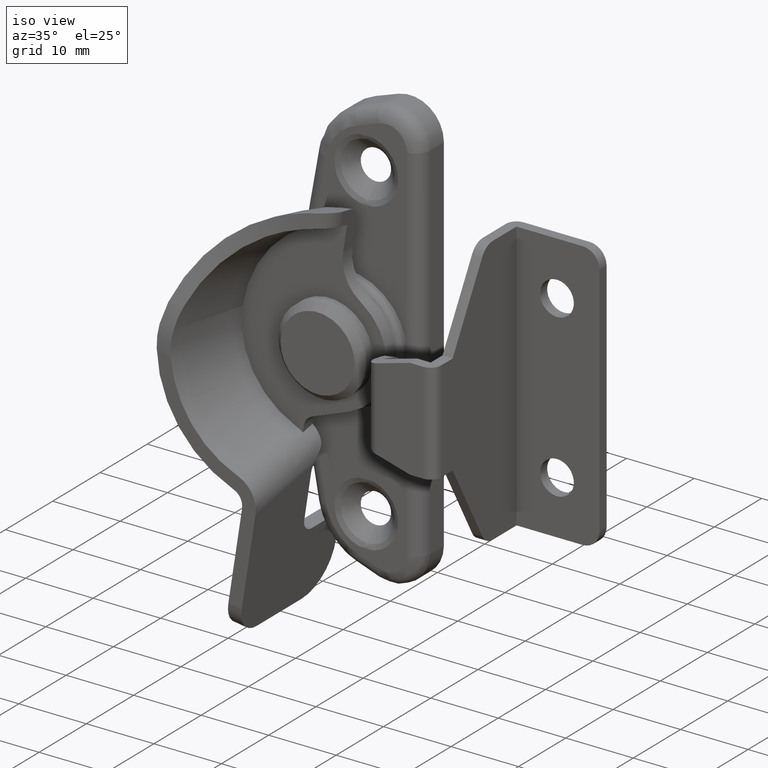
[diagram: clean part render]
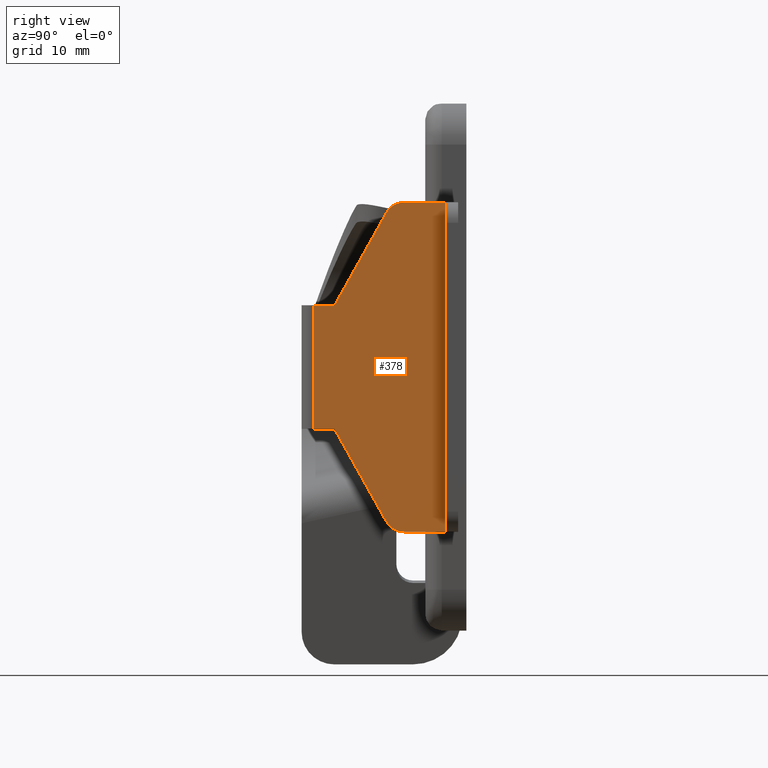
[diagram: tour spotlight — one face highlighted and labeled with its STEP entity id]
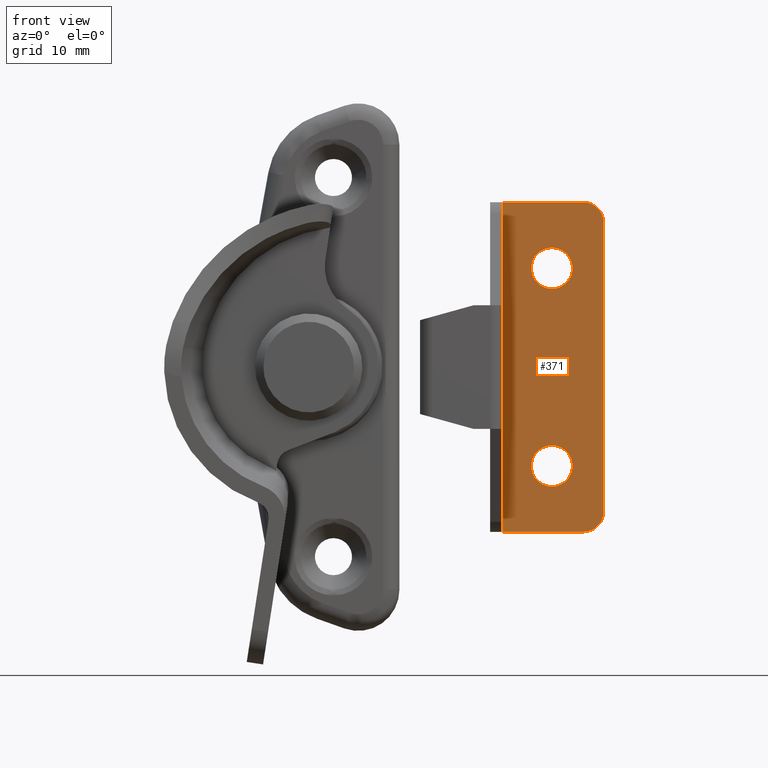
[diagram: tour spotlight — one face highlighted and labeled with its STEP entity id]
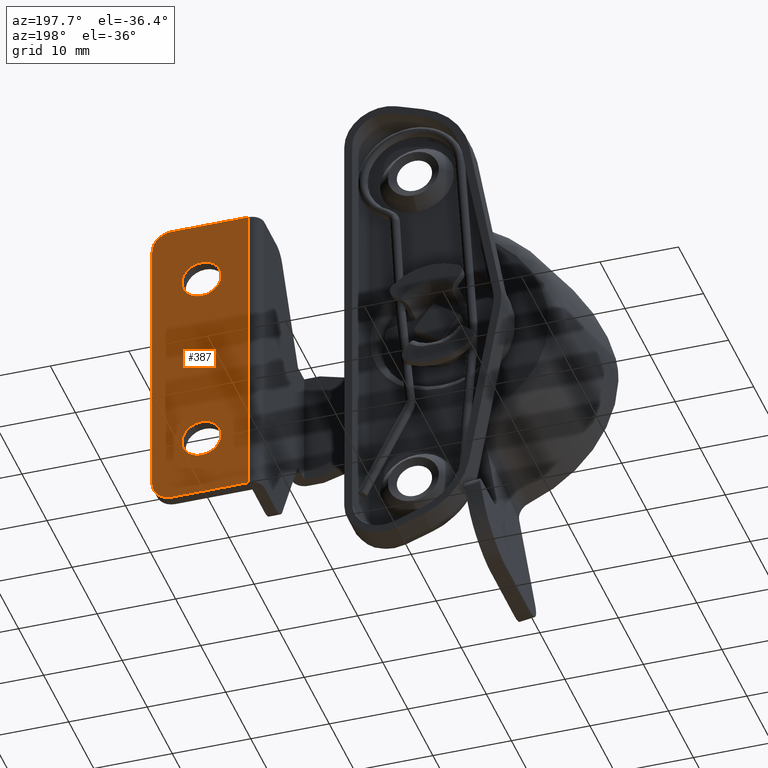
[diagram: tour spotlight — one face highlighted and labeled with its STEP entity id]
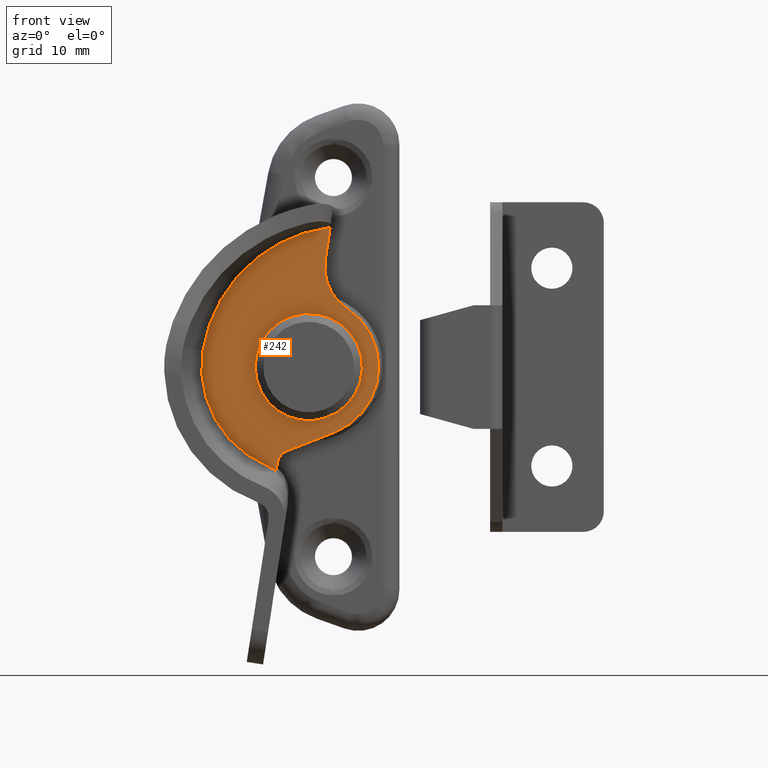
[diagram: tour spotlight — one face highlighted and labeled with its STEP entity id]
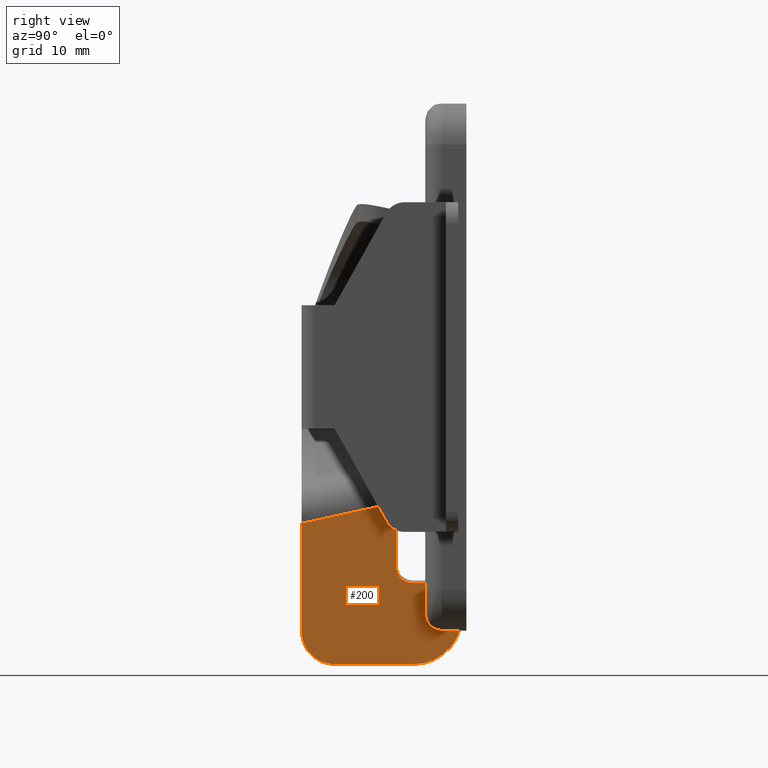
[diagram: tour spotlight — one face highlighted and labeled with its STEP entity id]
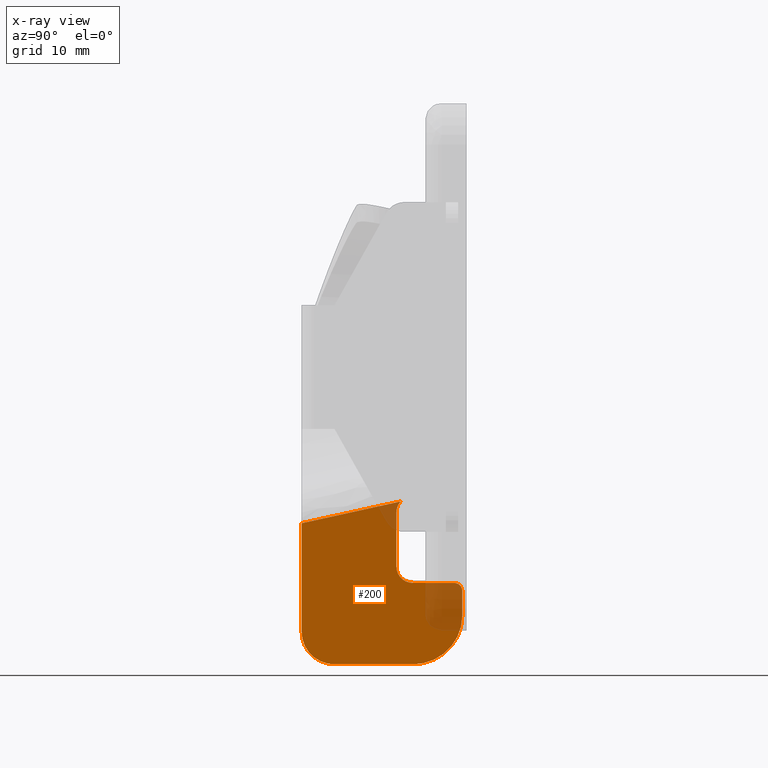
[diagram: x-ray of the same camera — body ghosted, this tour face saturated]
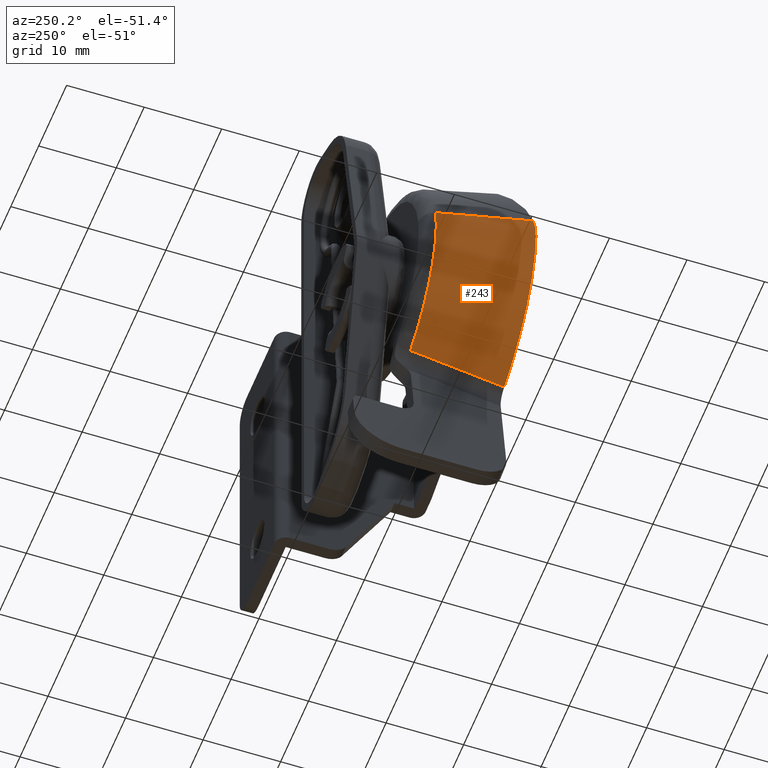
[diagram: tour spotlight — one face highlighted and labeled with its STEP entity id]
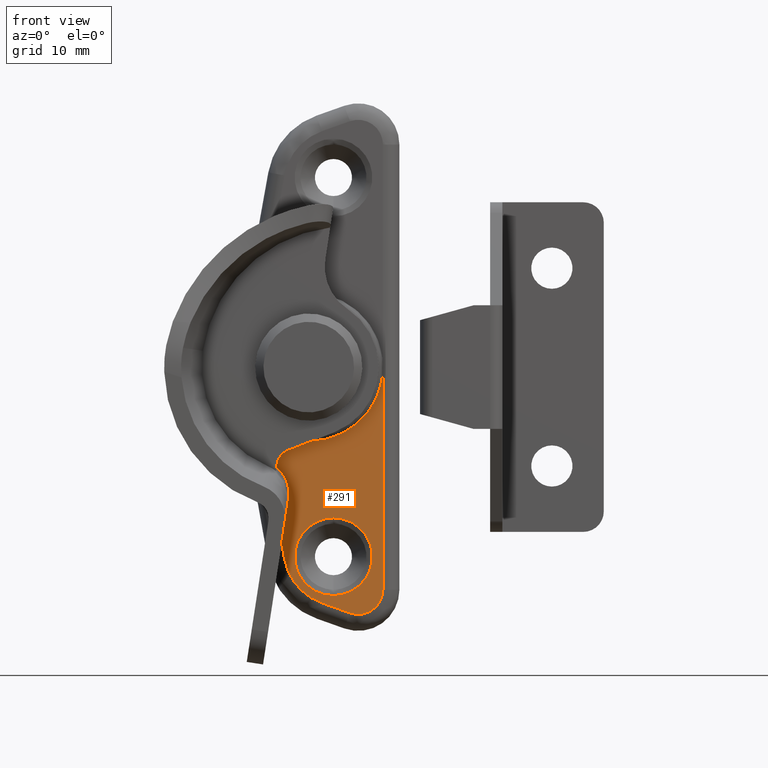
[diagram: tour spotlight — one face highlighted and labeled with its STEP entity id]
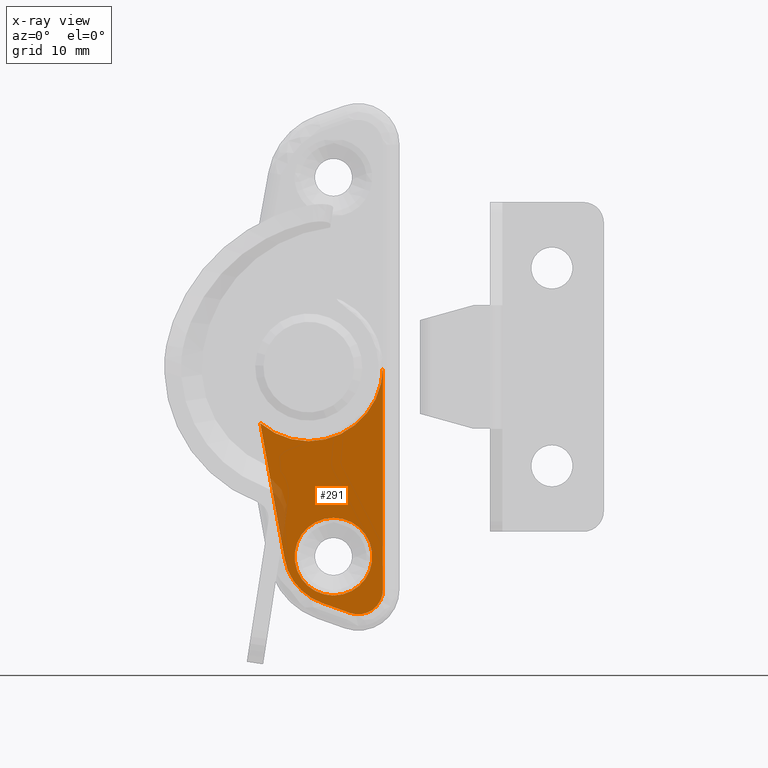
[diagram: x-ray of the same camera — body ghosted, this tour face saturated]
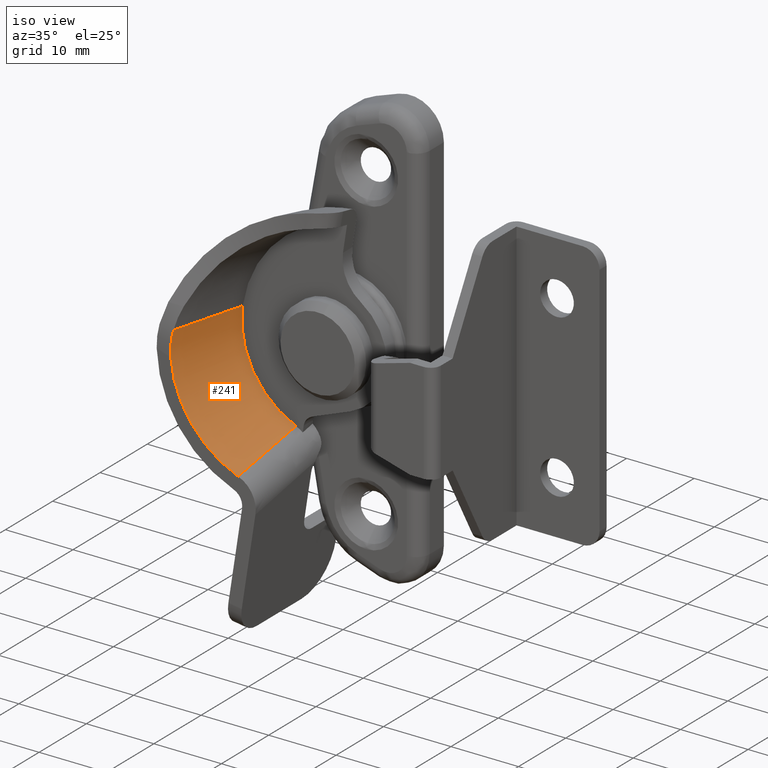
[diagram: tour spotlight — one face highlighted and labeled with its STEP entity id]
A machine part: a face-by-face anatomy tour. The part has 216 B-rep faces; the first image is the clean iso view, then the 8 largest visible faces are spotlighted one at a time (largest first), each with its STEP entity span.

Face 1 — right view, entity #378. In plain terms, the highlighted planar face has unit normal (-1, 0, 0).
Definition (entity closure, byte-faithful):
#378=ADVANCED_FACE('',(#2337),#2336,.F.);
#2336=PLANE('',#4354);
#2337=FACE_OUTER_BOUND('',#4355,.T.);
#4351=CARTESIAN_POINT('',(1.22999880000E+01,-1.91000000000E+01,2.40000000000E+01));
#4352=DIRECTION('',(1.00000000000E+00,0.00000000000E+00,0.00000000000E+00));
#4353=DIRECTION('',(0.00000000000E+00,0.00000000000E+00,-1.00000000000E+00));
#4354=AXIS2_PLACEMENT_3D('',#4351,#4352,#4353);
#4355=EDGE_LOOP('',(#5441,#5442,#5443,#5444,#5445,#5446,#5447,#5448,#5449,#5450));
#5441=ORIENTED_EDGE('',*,*,#6067,.T.);
#5442=ORIENTED_EDGE('',*,*,#6068,.T.);
#5443=ORIENTED_EDGE('',*,*,#6069,.F.);
#5444=ORIENTED_EDGE('',*,*,#6070,.T.);
#5445=ORIENTED_EDGE('',*,*,#6071,.F.);
#5446=ORIENTED_EDGE('',*,*,#6072,.T.);
#5447=ORIENTED_EDGE('',*,*,#6032,.T.);
#5448=ORIENTED_EDGE('',*,*,#6073,.T.);
#5449=ORIENTED_EDGE('',*,*,#6074,.F.);
#5450=ORIENTED_EDGE('',*,*,#6075,.T.);
#6032=EDGE_CURVE('',#9183,#9184,#9185,.T.);
#6067=EDGE_CURVE('',#9421,#9422,#9423,.T.);
#6068=EDGE_CURVE('',#9422,#9429,#9430,.T.);
#6069=EDGE_CURVE('',#9436,#9429,#9437,.T.);
#6070=EDGE_CURVE('',#9436,#9443,#9444,.T.);
#6071=EDGE_CURVE('',#9450,#9443,#9451,.T.);
#6072=EDGE_CURVE('',#9450,#9183,#9457,.T.);
#6073=EDGE_CURVE('',#9184,#9463,#9464,.T.);
#6074=EDGE_CURVE('',#9470,#9463,#9471,.T.);
#6075=EDGE_CURVE('',#9470,#9421,#9477,.T.);
#9183=VERTEX_POINT('',#11803);
#9184=VERTEX_POINT('',#11804);
#9185=LINE('',#11805,#11806);
#9421=VERTEX_POINT('',#11964);
#9422=VERTEX_POINT('',#11965);
#9423=LINE('',#11966,#11967);
#9429=VERTEX_POINT('',#11969);
#9430=LINE('',#11970,#11971);
#9436=VERTEX_POINT('',#11973);
#9437=LINE('',#11974,#11975);
#9443=VERTEX_POINT('',#11977);
#9444=LINE('',#11978,#11979);
#9450=VERTEX_POINT('',#11981);
#9451=CIRCLE('',#11985,2.50000000000E+00);
#9457=LINE('',#11986,#11987);
#9463=VERTEX_POINT('',#11989);
#9464=LINE('',#11990,#11991);
#9470=VERTEX_POINT('',#11993);
#9471=CIRCLE('',#11997,2.50000000000E+00);
#9477=LINE('',#11998,#11999);
#11803=CARTESIAN_POINT('',(1.22999880000E+01,-1.50000000000E+00,2.00000000000E+01));
#11804=CARTESIAN_POINT('',(1.22999880000E+01,-1.50000000000E+00,-2.00000000000E+01));
#11805=CARTESIAN_POINT('',(1.22999880000E+01,-1.50000000000E+00,2.00000000000E+01));
#11806=VECTOR('',#11807,4.00000000000E+01);
#11807=DIRECTION('',(0.00000000000E+00,0.00000000000E+00,-1.00000000000E+00));
#11964=CARTESIAN_POINT('',(1.22999880000E+01,-1.49999826400E+01,-7.50000000000E+00));
#11965=CARTESIAN_POINT('',(1.22999880000E+01,-1.75000000000E+01,-7.50000000000E+00));
#11966=CARTESIAN_POINT('',(1.22999880000E+01,-1.49999826400E+01,-7.50000000000E+00));
#11967=VECTOR('',#11968,2.50001736001E+00);
#11968=DIRECTION('',(0.00000000000E+00,-1.00000000000E+00,0.00000000000E+00));
#11969=CARTESIAN_POINT('',(1.22999880000E+01,-1.75000000000E+01,7.50000000000E+00));
#11970=CARTESIAN_POINT('',(1.22999880000E+01,-1.75000000000E+01,-7.50000000000E+00));
#11971=VECTOR('',#11972,1.50000000000E+01);
#11972=DIRECTION('',(0.00000000000E+00,0.00000000000E+00,1.00000000000E+00));
#11973=CARTESIAN_POINT('',(1.22999880000E+01,-1.50000352400E+01,7.50000000000E+00));
#11974=CARTESIAN_POINT('',(1.22999880000E+01,-1.50000352400E+01,7.50000000000E+00));
#11975=VECTOR('',#11976,2.49996475998E+00);
#11976=DIRECTION('',(0.00000000000E+00,-1.00000000000E+00,0.00000000000E+00));
#11977=CARTESIAN_POINT('',(1.22999880000E+01,-8.71599585956E+00,1.87215076931E+01));
#11978=CARTESIAN_POINT('',(1.22999880000E+01,-1.50000352400E+01,7.50000000000E+00));
#11979=VECTOR('',#11980,1.28612357821E+01);
#11980=DIRECTION('',(0.00000000000E+00,4.88603077257E-01,8.72506179287E-01));
#11981=CARTESIAN_POINT('',(1.22999880000E+01,-6.53473041134E+00,2.00000000000E+01));
#11982=CARTESIAN_POINT('',(1.22999880000E+01,-6.53473041134E+00,1.75000000000E+01));
#11983=DIRECTION('',(1.00000000000E+00,0.00000000000E+00,0.00000000000E+00));
#11984=DIRECTION('',(-0.00000000000E+00,-0.00000000000E+00,1.00000000000E+00));
#11985=AXIS2_PLACEMENT_3D('',#11982,#11983,#11984);
#11986=CARTESIAN_POINT('',(1.22999880000E+01,-6.53473041134E+00,2.00000000000E+01));
#11987=VECTOR('',#11988,5.03473041134E+00);
#11988=DIRECTION('',(0.00000000000E+00,1.00000000000E+00,0.00000000000E+00));
#11989=CARTESIAN_POINT('',(1.22999880000E+01,-6.53466959847E+00,-2.00000000000E+01));
#11990=CARTESIAN_POINT('',(1.22999880000E+01,-1.50000000000E+00,-2.00000000000E+01));
#11991=VECTOR('',#11992,5.03466959847E+00);
#11992=DIRECTION('',(0.00000000000E+00,-1.00000000000E+00,0.00000000000E+00));
#11993=CARTESIAN_POINT('',(1.22999880000E+01,-8.71593436612E+00,-1.87215089085E+01));
#11994=CARTESIAN_POINT('',(1.22999880000E+01,-6.53466959847E+00,-1.75000000000E+01));
#11995=DIRECTION('',(1.00000000000E+00,0.00000000000E+00,0.00000000000E+00));
#11996=DIRECTION('',(-0.00000000000E+00,-0.00000000000E+00,1.00000000000E+00));
#11997=AXIS2_PLACEMENT_3D('',#11994,#11995,#11996);
#11998=CARTESIAN_POINT('',(1.22999880000E+01,-8.71593436612E+00,-1.87215089085E+01));
#11999=VECTOR('',#12000,1.28612411878E+01);
#12000=DIRECTION('',(0.00000000000E+00,-4.88603563382E-01,8.72505907058E-01));

Face 2 — front view, entity #371. In plain terms, the highlighted planar face has unit normal (0, -1, 0).
Definition (entity closure, byte-faithful):
#371=ADVANCED_FACE('',(#2265,#2266,#2267),#2264,.T.);
#2264=PLANE('',#4317);
#2265=FACE_OUTER_BOUND('',#4318,.T.);
#2266=FACE_BOUND('',#4319,.T.);
#2267=FACE_BOUND('',#4320,.T.);
#4314=CARTESIAN_POINT('',(-1.22999880000E+00,-1.50000000000E+00,2.40000000000E+01));
#4315=DIRECTION('',(0.00000000000E+00,-1.00000000000E+00,0.00000000000E+00));
#4316=DIRECTION('',(0.00000000000E+00,0.00000000000E+00,-1.00000000000E+00));
#4317=AXIS2_PLACEMENT_3D('',#4314,#4315,#4316);
#4318=EDGE_LOOP('',(#5399,#5400,#5401,#5402,#5403,#5404));
#4319=EDGE_LOOP('',(#5405,#5406));
#4320=EDGE_LOOP('',(#5407,#5408));
#5399=ORIENTED_EDGE('',*,*,#6032,.F.);
#5400=ORIENTED_EDGE('',*,*,#6033,.F.);
#5401=ORIENTED_EDGE('',*,*,#6034,.T.);
#5402=ORIENTED_EDGE('',*,*,#6035,.F.);
#5403=ORIENTED_EDGE('',*,*,#6036,.T.);
#5404=ORIENTED_EDGE('',*,*,#6037,.F.);
#5405=ORIENTED_EDGE('',*,*,#6038,.F.);
#5406=ORIENTED_EDGE('',*,*,#6039,.F.);
#5407=ORIENTED_EDGE('',*,*,#6040,.F.);
#5408=ORIENTED_EDGE('',*,*,#6041,.F.);
#6032=EDGE_CURVE('',#9183,#9184,#9185,.T.);
#6033=EDGE_CURVE('',#9191,#9183,#9192,.T.);
#6034=EDGE_CURVE('',#9191,#9198,#9199,.T.);
#6035=EDGE_CURVE('',#9205,#9198,#9206,.T.);
#6036=EDGE_CURVE('',#9205,#9212,#9213,.T.);
#6037=EDGE_CURVE('',#9184,#9212,#9219,.T.);
#6038=EDGE_CURVE('',#9225,#9226,#9227,.T.);
#6039=EDGE_CURVE('',#9226,#9225,#9233,.T.);
#6040=EDGE_CURVE('',#9239,#9240,#9241,.T.);
#6041=EDGE_CURVE('',#9240,#9239,#9247,.T.);
#9183=VERTEX_POINT('',#11803);
#9184=VERTEX_POINT('',#11804);
#9185=LINE('',#11805,#11806);
#9191=VERTEX_POINT('',#11808);
#9192=LINE('',#11809,#11810);
#9198=VERTEX_POINT('',#11812);
#9199=CIRCLE('',#11816,2.50000000000E+00);
#9205=VERTEX_POINT('',#11817);
#9206=LINE('',#11818,#11819);
#9212=VERTEX_POINT('',#11821);
#9213=CIRCLE('',#11825,2.50000000000E+00);
#9219=LINE('',#11826,#11827);
#9225=VERTEX_POINT('',#11829);
#9226=VERTEX_POINT('',#11830);
#9227=CIRCLE('',#11834,2.50000000000E+00);
#9233=CIRCLE('',#11838,2.50000000000E+00);
#9239=VERTEX_POINT('',#11839);
#9240=VERTEX_POINT('',#11840);
#9241=CIRCLE('',#11844,2.50000000000E+00);
#9247=CIRCLE('',#11848,2.50000000000E+00);
#11803=CARTESIAN_POINT('',(1.22999880000E+01,-1.50000000000E+00,2.00000000000E+01));
#11804=CARTESIAN_POINT('',(1.22999880000E+01,-1.50000000000E+00,-2.00000000000E+01));
#11805=CARTESIAN_POINT('',(1.22999880000E+01,-1.50000000000E+00,2.00000000000E+01));
#11806=VECTOR('',#11807,4.00000000000E+01);
#11807=DIRECTION('',(0.00000000000E+00,0.00000000000E+00,-1.00000000000E+00));
#11808=CARTESIAN_POINT('',(2.50000000000E+00,-1.50000000000E+00,2.00000000000E+01));
#11809=CARTESIAN_POINT('',(2.50000000000E+00,-1.50000000000E+00,2.00000000000E+01));
#11810=VECTOR('',#11811,9.79998800000E+00);
#11811=DIRECTION('',(1.00000000000E+00,0.00000000000E+00,0.00000000000E+00));
#11812=CARTESIAN_POINT('',(0.00000000000E+00,-1.50000000000E+00,1.75000000000E+01));
#11813=CARTESIAN_POINT('',(2.50000000000E+00,-1.50000000000E+00,1.75000000000E+01));
#11814=DIRECTION('',(0.00000000000E+00,-1.00000000000E+00,0.00000000000E+00));
#11815=DIRECTION('',(-0.00000000000E+00,-0.00000000000E+00,1.00000000000E+00));
#11816=AXIS2_PLACEMENT_3D('',#11813,#11814,#11815);
#11817=CARTESIAN_POINT('',(0.00000000000E+00,-1.50000000000E+00,-1.75000000000E+01));
#11818=CARTESIAN_POINT('',(0.00000000000E+00,-1.50000000000E+00,-1.75000000000E+01));
#11819=VECTOR('',#11820,3.50000000000E+01);
#11820=DIRECTION('',(0.00000000000E+00,0.00000000000E+00,1.00000000000E+00));
#11821=CARTESIAN_POINT('',(2.50000000000E+00,-1.50000000000E+00,-2.00000000000E+01));
#11822=CARTESIAN_POINT('',(2.50000000000E+00,-1.50000000000E+00,-1.75000000000E+01));
#11823=DIRECTION('',(0.00000000000E+00,-1.00000000000E+00,0.00000000000E+00));
#11824=DIRECTION('',(-0.00000000000E+00,-0.00000000000E+00,1.00000000000E+00));
#11825=AXIS2_PLACEMENT_3D('',#11822,#11823,#11824);
#11826=CARTESIAN_POINT('',(1.22999880000E+01,-1.50000000000E+00,-2.00000000000E+01));
#11827=VECTOR('',#11828,9.79998800000E+00);
#11828=DIRECTION('',(-1.00000000000E+00,0.00000000000E+00,0.00000000000E+00));
#11829=CARTESIAN_POINT('',(6.29998800000E+00,-1.50000000000E+00,1.45000000000E+01));
#11830=CARTESIAN_POINT('',(6.29998800000E+00,-1.50000000000E+00,9.50000000000E+00));
#11831=CARTESIAN_POINT('',(6.29998800000E+00,-1.50000000000E+00,1.20000000000E+01));
#11832=DIRECTION('',(0.00000000000E+00,-1.00000000000E+00,-0.00000000000E+00));
#11833=DIRECTION('',(-1.22460635382E-16,0.00000000000E+00,-1.00000000000E+00));
#11834=AXIS2_PLACEMENT_3D('',#11831,#11832,#11833);
#11835=CARTESIAN_POINT('',(6.29998800000E+00,-1.50000000000E+00,1.20000000000E+01));
#11836=DIRECTION('',(0.00000000000E+00,-1.00000000000E+00,-0.00000000000E+00));
#11837=DIRECTION('',(-1.22460635382E-16,0.00000000000E+00,-1.00000000000E+00));
#11838=AXIS2_PLACEMENT_3D('',#11835,#11836,#11837);
#11839=CARTESIAN_POINT('',(6.29998800000E+00,-1.50000000000E+00,-9.50000000000E+00));
#11840=CARTESIAN_POINT('',(6.29998800000E+00,-1.50000000000E+00,-1.45000000000E+01));
#11841=CARTESIAN_POINT('',(6.29998800000E+00,-1.50000000000E+00,-1.20000000000E+01));
#11842=DIRECTION('',(0.00000000000E+00,-1.00000000000E+00,-0.00000000000E+00));
#11843=DIRECTION('',(-1.22460635382E-16,0.00000000000E+00,-1.00000000000E+00));
#11844=AXIS2_PLACEMENT_3D('',#11841,#11842,#11843);
#11845=CARTESIAN_POINT('',(6.29998800000E+00,-1.50000000000E+00,-1.20000000000E+01));
#11846=DIRECTION('',(0.00000000000E+00,-1.00000000000E+00,-0.00000000000E+00));
#11847=DIRECTION('',(-1.22460635382E-16,0.00000000000E+00,-1.00000000000E+00));
#11848=AXIS2_PLACEMENT_3D('',#11845,#11846,#11847);

Face 3 — auxiliary view, entity #387. In plain terms, the highlighted planar face has unit normal (0, -1, 0).
Definition (entity closure, byte-faithful):
#387=ADVANCED_FACE('',(#2427,#2428,#2429),#2426,.F.);
#2426=PLANE('',#4399);
#2427=FACE_OUTER_BOUND('',#4400,.T.);
#2428=FACE_BOUND('',#4401,.T.);
#2429=FACE_BOUND('',#4402,.T.);
#4396=CARTESIAN_POINT('',(-1.22999880000E+00,0.00000000000E+00,2.40000000000E+01));
#4397=DIRECTION('',(0.00000000000E+00,-1.00000000000E+00,0.00000000000E+00));
#4398=DIRECTION('',(0.00000000000E+00,0.00000000000E+00,-1.00000000000E+00));
#4399=AXIS2_PLACEMENT_3D('',#4396,#4397,#4398);
#4400=EDGE_LOOP('',(#5490,#5491,#5492,#5493,#5494,#5495));
#4401=EDGE_LOOP('',(#5496,#5497));
#4402=EDGE_LOOP('',(#5498,#5499));
#5490=ORIENTED_EDGE('',*,*,#6093,.T.);
#5491=ORIENTED_EDGE('',*,*,#6045,.T.);
#5492=ORIENTED_EDGE('',*,*,#6091,.F.);
#5493=ORIENTED_EDGE('',*,*,#6081,.F.);
#5494=ORIENTED_EDGE('',*,*,#6084,.T.);
#5495=ORIENTED_EDGE('',*,*,#6086,.F.);
#5496=ORIENTED_EDGE('',*,*,#6094,.T.);
#5497=ORIENTED_EDGE('',*,*,#6095,.T.);
#5498=ORIENTED_EDGE('',*,*,#6096,.T.);
#5499=ORIENTED_EDGE('',*,*,#6097,.T.);
#6045=EDGE_CURVE('',#9254,#9268,#9275,.T.);
#6081=EDGE_CURVE('',#9508,#9515,#9516,.T.);
#6084=EDGE_CURVE('',#9508,#9528,#9535,.T.);
#6086=EDGE_CURVE('',#9541,#9528,#9548,.T.);
#6091=EDGE_CURVE('',#9515,#9268,#9580,.T.);
#6093=EDGE_CURVE('',#9541,#9254,#9592,.T.);
#6094=EDGE_CURVE('',#9598,#9599,#9600,.T.);
#6095=EDGE_CURVE('',#9599,#9598,#9606,.T.);
#6096=EDGE_CURVE('',#9612,#9613,#9614,.T.);
#6097=EDGE_CURVE('',#9613,#9612,#9620,.T.);
#9254=VERTEX_POINT('',#11850);
#9268=VERTEX_POINT('',#11859);
#9275=LINE('',#11864,#11865);
#9508=VERTEX_POINT('',#12015);
#9515=VERTEX_POINT('',#12019);
#9516=CIRCLE('',#12023,2.50000000000E+00);
#9528=VERTEX_POINT('',#12027);
#9535=LINE('',#12031,#12032);
#9541=VERTEX_POINT('',#12034);
#9548=CIRCLE('',#12041,2.50000000000E+00);
#9580=LINE('',#12057,#12058);
#9592=LINE('',#12063,#12064);
#9598=VERTEX_POINT('',#12066);
#9599=VERTEX_POINT('',#12067);
#9600=CIRCLE('',#12071,2.50000000000E+00);
#9606=CIRCLE('',#12075,2.50000000000E+00);
#9612=VERTEX_POINT('',#12076);
#9613=VERTEX_POINT('',#12077);
#9614=CIRCLE('',#12081,2.50000000000E+00);
#9620=CIRCLE('',#12085,2.50000000000E+00);
#11850=CARTESIAN_POINT('',(1.22999880000E+01,0.00000000000E+00,2.00000000000E+01));
#11859=CARTESIAN_POINT('',(1.22999880000E+01,0.00000000000E+00,-2.00000000000E+01));
#11864=CARTESIAN_POINT('',(1.22999880000E+01,0.00000000000E+00,2.00000000000E+01));
#11865=VECTOR('',#11866,4.00000000000E+01);
#11866=DIRECTION('',(0.00000000000E+00,0.00000000000E+00,-1.00000000000E+00));
#12015=CARTESIAN_POINT('',(0.00000000000E+00,0.00000000000E+00,-1.75000000000E+01));
#12019=CARTESIAN_POINT('',(2.50000000000E+00,0.00000000000E+00,-2.00000000000E+01));
#12020=CARTESIAN_POINT('',(2.50000000000E+00,0.00000000000E+00,-1.75000000000E+01));
#12021=DIRECTION('',(0.00000000000E+00,-1.00000000000E+00,0.00000000000E+00));
#12022=DIRECTION('',(-0.00000000000E+00,-0.00000000000E+00,1.00000000000E+00));
#12023=AXIS2_PLACEMENT_3D('',#12020,#12021,#12022);
#12027=CARTESIAN_POINT('',(0.00000000000E+00,0.00000000000E+00,1.75000000000E+01));
#12031=CARTESIAN_POINT('',(0.00000000000E+00,0.00000000000E+00,-1.75000000000E+01));
#12032=VECTOR('',#12033,3.50000000000E+01);
#12033=DIRECTION('',(0.00000000000E+00,0.00000000000E+00,1.00000000000E+00));
#12034=CARTESIAN_POINT('',(2.50000000000E+00,0.00000000000E+00,2.00000000000E+01));
#12038=CARTESIAN_POINT('',(2.50000000000E+00,0.00000000000E+00,1.75000000000E+01));
#12039=DIRECTION('',(0.00000000000E+00,-1.00000000000E+00,0.00000000000E+00));
#12040=DIRECTION('',(-0.00000000000E+00,-0.00000000000E+00,1.00000000000E+00));
#12041=AXIS2_PLACEMENT_3D('',#12038,#12039,#12040);
#12057=CARTESIAN_POINT('',(2.50000000000E+00,0.00000000000E+00,-2.00000000000E+01));
#12058=VECTOR('',#12059,9.79998800000E+00);
#12059=DIRECTION('',(1.00000000000E+00,0.00000000000E+00,0.00000000000E+00));
#12063=CARTESIAN_POINT('',(2.50000000000E+00,0.00000000000E+00,2.00000000000E+01));
#12064=VECTOR('',#12065,9.79998800000E+00);
#12065=DIRECTION('',(1.00000000000E+00,0.00000000000E+00,0.00000000000E+00));
#12066=CARTESIAN_POINT('',(6.29998800000E+00,0.00000000000E+00,9.50000000000E+00));
#12067=CARTESIAN_POINT('',(6.29998800000E+00,0.00000000000E+00,1.45000000000E+01));
#12068=CARTESIAN_POINT('',(6.29998800000E+00,0.00000000000E+00,1.20000000000E+01));
#12069=DIRECTION('',(0.00000000000E+00,-1.00000000000E+00,-0.00000000000E+00));
#12070=DIRECTION('',(-1.22460635382E-16,0.00000000000E+00,-1.00000000000E+00));
#12071=AXIS2_PLACEMENT_3D('',#12068,#12069,#12070);
#12072=CARTESIAN_POINT('',(6.29998800000E+00,0.00000000000E+00,1.20000000000E+01));
#12073=DIRECTION('',(0.00000000000E+00,-1.00000000000E+00,-0.00000000000E+00));
#12074=DIRECTION('',(-1.22460635382E-16,0.00000000000E+00,-1.00000000000E+00));
#12075=AXIS2_PLACEMENT_3D('',#12072,#12073,#12074);
#12076=CARTESIAN_POINT('',(6.29998800000E+00,0.00000000000E+00,-1.45000000000E+01));
#12077=CARTESIAN_POINT('',(6.29998800000E+00,0.00000000000E+00,-9.50000000000E+00));
#12078=CARTESIAN_POINT('',(6.29998800000E+00,0.00000000000E+00,-1.20000000000E+01));
#12079=DIRECTION('',(0.00000000000E+00,-1.00000000000E+00,-0.00000000000E+00));
#12080=DIRECTION('',(-1.22460635382E-16,0.00000000000E+00,-1.00000000000E+00));
#12081=AXIS2_PLACEMENT_3D('',#12078,#12079,#12080);
#12082=CARTESIAN_POINT('',(6.29998800000E+00,0.00000000000E+00,-1.20000000000E+01));
#12083=DIRECTION('',(0.00000000000E+00,-1.00000000000E+00,-0.00000000000E+00));
#12084=DIRECTION('',(-1.22460635382E-16,0.00000000000E+00,-1.00000000000E+00));
#12085=AXIS2_PLACEMENT_3D('',#12082,#12083,#12084);

Face 4 — front view, entity #242. In plain terms, the highlighted planar face has unit normal (0, -1, 0).
Definition (entity closure, byte-faithful):
#242=ADVANCED_FACE('',(#966,#967),#965,.T.);
#965=PLANE('',#3005);
#966=FACE_OUTER_BOUND('',#3006,.T.);
#967=FACE_BOUND('',#3007,.T.);
#3002=CARTESIAN_POINT('',(-3.39351849721E+01,0.00000000000E+00,2.22327390075E+01));
#3003=DIRECTION('',(0.00000000000E+00,-1.00000000000E+00,-0.00000000000E+00));
#3004=DIRECTION('',(-1.51914655832E-01,0.00000000000E+00,-9.88393614580E-01));
#3005=AXIS2_PLACEMENT_3D('',#3002,#3003,#3004);
#3006=EDGE_LOOP('',(#4777,#4778,#4779,#4780,#4781,#4782,#4783,#4784,#4785));
#3007=EDGE_LOOP('',(#4786,#4787));
#4777=ORIENTED_EDGE('',*,*,#5659,.T.);
#4778=ORIENTED_EDGE('',*,*,#5761,.F.);
#4779=ORIENTED_EDGE('',*,*,#5755,.T.);
#4780=ORIENTED_EDGE('',*,*,#5762,.F.);
#4781=ORIENTED_EDGE('',*,*,#5763,.F.);
#4782=ORIENTED_EDGE('',*,*,#5621,.F.);
#4783=ORIENTED_EDGE('',*,*,#5643,.F.);
#4784=ORIENTED_EDGE('',*,*,#5760,.F.);
#4785=ORIENTED_EDGE('',*,*,#5601,.F.);
#4786=ORIENTED_EDGE('',*,*,#5764,.T.);
#4787=ORIENTED_EDGE('',*,*,#5765,.T.);
#5601=EDGE_CURVE('',#6326,#6333,#6334,.T.);
#5621=EDGE_CURVE('',#6462,#6469,#6470,.T.);
#5643=EDGE_CURVE('',#6607,#6462,#6614,.T.);
#5659=EDGE_CURVE('',#6326,#6723,#6724,.T.);
#5755=EDGE_CURVE('',#7369,#7362,#7370,.T.);
#5760=EDGE_CURVE('',#6333,#6607,#7400,.T.);
#5761=EDGE_CURVE('',#7369,#6723,#7406,.T.);
#5762=EDGE_CURVE('',#7412,#7362,#7413,.T.);
#5763=EDGE_CURVE('',#6469,#7412,#7419,.T.);
#5764=EDGE_CURVE('',#7425,#7426,#7427,.T.);
#5765=EDGE_CURVE('',#7426,#7425,#7433,.T.);
#6326=VERTEX_POINT('',#9952);
#6333=VERTEX_POINT('',#9957);
#6334=(BOUNDED_CURVE() B_SPLINE_CURVE(3,(#9958,#9959,#9960,#9961),.UNSPECIFIED.,.F.,.F.) B_SPLINE_CURVE_WITH_KNOTS((4,4),(0.00000000000E+00,1.16116631251E-03),.UNSPECIFIED.) CURVE() GEOMETRIC_REPRESENTATION_ITEM() RATIONAL_B_SPLINE_CURVE((1.00000000000E+00,1.00000000000E+00,1.00000000000E+00,1.00000000000E+00)) REPRESENTATION_ITEM('') );
#6462=VERTEX_POINT('',#10071);
#6469=VERTEX_POINT('',#10076);
#6470=LINE('',#10077,#10078);
#6607=VERTEX_POINT('',#10161);
#6614=CIRCLE('',#10168,1.78000000000E+01);
#6723=VERTEX_POINT('',#10252);
#6724=LINE('',#10253,#10254);
#7362=VERTEX_POINT('',#10646);
#7369=VERTEX_POINT('',#10650);
#7370=LINE('',#10651,#10652);
#7400=CIRCLE('',#10669,1.30000000000E+01);
#7406=CIRCLE('',#10673,2.00000000000E+00);
#7412=VERTEX_POINT('',#10674);
#7413=CIRCLE('',#10678,8.50000000000E+00);
#7419=CIRCLE('',#10682,6.00000000000E+00);
#7425=VERTEX_POINT('',#10683);
#7426=VERTEX_POINT('',#10684);
#7427=CIRCLE('',#10688,6.50000000000E+00);
#7433=CIRCLE('',#10692,6.50000000000E+00);
#9952=CARTESIAN_POINT('',(-2.59621804700E+01,0.00000000000E+00,-1.26136167606E+01));
#9957=CARTESIAN_POINT('',(-2.69584801494E+01,0.00000000000E+00,-1.20172157594E+01));
#9958=CARTESIAN_POINT('',(-2.59621804700E+01,0.00000000000E+00,-1.26136167606E+01));
#9959=CARTESIAN_POINT('',(-2.62647751320E+01,0.00000000000E+00,-1.23655273542E+01));
#9960=CARTESIAN_POINT('',(-2.65967273328E+01,0.00000000000E+00,-1.21664802975E+01));
#9961=CARTESIAN_POINT('',(-2.69584801494E+01,0.00000000000E+00,-1.20172157594E+01));
#10071=CARTESIAN_POINT('',(-1.93960923963E+01,4.25798365246E-16,1.69416547359E+01));
#10076=CARTESIAN_POINT('',(-1.99946690004E+01,0.00000000000E+00,1.30471700986E+01));
#10077=CARTESIAN_POINT('',(-1.93960923963E+01,0.00000000000E+00,1.69416547359E+01));
#10078=VECTOR('',#10079,3.94021630641E+00);
#10079=DIRECTION('',(-1.51914655832E-01,0.00000000000E+00,-9.88393614580E-01));
#10161=CARTESIAN_POINT('',(-3.48491169895E+01,1.38777878078E-14,1.97489052589E+00));
#10165=CARTESIAN_POINT('',(-1.72557106500E+01,0.00000000000E+00,-7.29190347995E-01));
#10166=DIRECTION('',(0.00000000000E+00,1.00000000000E+00,0.00000000000E+00));
#10167=DIRECTION('',(1.51914655832E-01,-0.00000000000E+00,9.88393614580E-01));
#10168=AXIS2_PLACEMENT_3D('',#10165,#10166,#10167);
#10252=CARTESIAN_POINT('',(-2.58186552205E+01,0.00000000000E+00,-1.16798066593E+01));
#10253=CARTESIAN_POINT('',(-2.59621804700E+01,0.00000000000E+00,-1.26136167606E+01));
#10254=VECTOR('',#10255,9.44775530161E-01);
#10255=DIRECTION('',(1.51914655832E-01,0.00000000000E+00,9.88393614580E-01));
#10646=CARTESIAN_POINT('',(-1.89176037229E+01,0.00000000000E+00,-7.92141611019E+00));
#10650=CARTESIAN_POINT('',(-2.45671377036E+01,0.00000000000E+00,-1.01197733568E+01));
#10651=CARTESIAN_POINT('',(-2.45671377036E+01,0.00000000000E+00,-1.01197733568E+01));
#10652=VECTOR('',#10653,6.06217855090E+00);
#10653=DIRECTION('',(9.31931307081E-01,0.00000000000E+00,3.62634856132E-01));
#10666=CARTESIAN_POINT('',(-2.20000000000E+01,0.00000000000E+00,0.00000000000E+00));
#10667=DIRECTION('',(0.00000000000E+00,1.00000000000E+00,0.00000000000E+00));
#10668=DIRECTION('',(1.51914655832E-01,-0.00000000000E+00,9.88393614580E-01));
#10669=AXIS2_PLACEMENT_3D('',#10666,#10667,#10668);
#10670=CARTESIAN_POINT('',(-2.38418679913E+01,0.00000000000E+00,-1.19836359710E+01));
#10671=DIRECTION('',(0.00000000000E+00,-1.00000000000E+00,-0.00000000000E+00));
#10672=DIRECTION('',(1.51914655832E-01,-0.00000000000E+00,9.88393614580E-01));
#10673=AXIS2_PLACEMENT_3D('',#10670,#10671,#10672);
#10674=CARTESIAN_POINT('',(-1.73480422179E+01,0.00000000000E+00,7.11402057867E+00));
#10675=CARTESIAN_POINT('',(-2.20000000000E+01,0.00000000000E+00,0.00000000000E+00));
#10676=DIRECTION('',(0.00000000000E+00,1.00000000000E+00,0.00000000000E+00));
#10677=DIRECTION('',(1.51914655832E-01,-0.00000000000E+00,9.88393614580E-01));
#10678=AXIS2_PLACEMENT_3D('',#10675,#10676,#10677);
#10679=CARTESIAN_POINT('',(-1.40643073129E+01,0.00000000000E+00,1.21356821636E+01));
#10680=DIRECTION('',(0.00000000000E+00,-1.00000000000E+00,-0.00000000000E+00));
#10681=DIRECTION('',(1.51914655832E-01,-0.00000000000E+00,9.88393614580E-01));
#10682=AXIS2_PLACEMENT_3D('',#10679,#10680,#10681);
#10683=CARTESIAN_POINT('',(-2.10125547372E+01,-5.85469173142E-14,6.42455849471E+00));
#10684=CARTESIAN_POINT('',(-2.29874452630E+01,-5.85469173142E-14,-6.42455849483E+00));
#10685=CARTESIAN_POINT('',(-2.20000000001E+01,-5.85469173142E-14,-5.79137481327E-11));
#10686=DIRECTION('',(0.00000000000E+00,1.00000000000E+00,-0.00000000000E+00));
#10687=DIRECTION('',(1.51914655832E-01,0.00000000000E+00,9.88393614580E-01));
#10688=AXIS2_PLACEMENT_3D('',#10685,#10686,#10687);
#10689=CARTESIAN_POINT('',(-2.20000000001E+01,-5.85469173142E-14,-5.79137481327E-11));
#10690=DIRECTION('',(0.00000000000E+00,1.00000000000E+00,-0.00000000000E+00));
#10691=DIRECTION('',(1.51914655832E-01,0.00000000000E+00,9.88393614580E-01));
#10692=AXIS2_PLACEMENT_3D('',#10689,#10690,#10691);

Face 5 — right view, entity #200. An x-ray twin of the same camera follows (body ghosted, this face saturated) — the face is partly hidden behind the body. In plain terms, the highlighted planar face has unit normal (-0.9884, 0, 0.1519).
Definition (entity closure, byte-faithful):
#200=ADVANCED_FACE('',(#543),#542,.F.);
#542=PLANE('',#2758);
#543=FACE_OUTER_BOUND('',#2759,.T.);
#2755=CARTESIAN_POINT('',(-2.42032217757E+01,9.95000000000E+00,-1.43346955086E+01));
#2756=DIRECTION('',(-9.88393614580E-01,0.00000000000E+00,1.51914655832E-01));
#2757=DIRECTION('',(-1.51914655832E-01,0.00000000000E+00,-9.88393614580E-01));
#2758=AXIS2_PLACEMENT_3D('',#2755,#2756,#2757);
#2759=EDGE_LOOP('',(#4556,#4557,#4558,#4559,#4560,#4561,#4562,#4563,#4564,#4565,#4566,#4567));
#4556=ORIENTED_EDGE('',*,*,#5628,.F.);
#4557=ORIENTED_EDGE('',*,*,#5612,.F.);
#4558=ORIENTED_EDGE('',*,*,#5629,.T.);
#4559=ORIENTED_EDGE('',*,*,#5616,.F.);
#4560=ORIENTED_EDGE('',*,*,#5588,.F.);
#4561=ORIENTED_EDGE('',*,*,#5604,.F.);
#4562=ORIENTED_EDGE('',*,*,#5625,.F.);
#4563=ORIENTED_EDGE('',*,*,#5610,.F.);
#4564=ORIENTED_EDGE('',*,*,#5630,.F.);
#4565=ORIENTED_EDGE('',*,*,#5631,.F.);
#4566=ORIENTED_EDGE('',*,*,#5632,.T.);
#4567=ORIENTED_EDGE('',*,*,#5633,.F.);
#5588=EDGE_CURVE('',#6238,#6245,#6246,.T.);
#5604=EDGE_CURVE('',#6347,#6238,#6354,.T.);
#5610=EDGE_CURVE('',#6388,#6395,#6396,.T.);
#5612=EDGE_CURVE('',#6408,#6409,#6410,.T.);
#5616=EDGE_CURVE('',#6245,#6436,#6437,.T.);
#5625=EDGE_CURVE('',#6395,#6347,#6495,.T.);
#5628=EDGE_CURVE('',#6409,#6513,#6514,.T.);
#5629=EDGE_CURVE('',#6408,#6436,#6520,.T.);
#5630=EDGE_CURVE('',#6526,#6388,#6527,.T.);
#5631=EDGE_CURVE('',#6533,#6526,#6534,.T.);
#5632=EDGE_CURVE('',#6533,#6540,#6541,.T.);
#5633=EDGE_CURVE('',#6513,#6540,#6547,.T.);
#6238=VERTEX_POINT('',#9867);
#6245=VERTEX_POINT('',#9872);
#6246=LINE('',#9873,#9874);
#6347=VERTEX_POINT('',#9970);
#6354=(BOUNDED_CURVE() B_SPLINE_CURVE(3,(#9985,#9986,#9987,#9988,#9989,#9990,#9991,#9992,#9993,#9994),.UNSPECIFIED.,.F.,.F.) B_SPLINE_CURVE_WITH_KNOTS((4,3,3,4),(0.00000000000E+00,7.68943887078E-03,1.17819203992E-02,1.23137550469E-02),.UNSPECIFIED.) CURVE() GEOMETRIC_REPRESENTATION_ITEM() RATIONAL_B_SPLINE_CURVE((1.00000000000E+00,1.00000000000E+00,1.00000000000E+00,1.00000000000E+00,1.00000000000E+00,1.00000000000E+00,1.00000000000E+00,1.00000000000E+00,1.00000000000E+00,1.00000000000E+00)) REPRESENTATION_ITEM('') );
#6388=VERTEX_POINT('',#10021);
#6395=VERTEX_POINT('',#10025);
#6396=CIRCLE('',#10029,4.00000000000E+00);
#6408=VERTEX_POINT('',#10033);
#6409=VERTEX_POINT('',#10034);
#6410=CIRCLE('',#10038,2.00000000000E+00);
#6436=VERTEX_POINT('',#10051);
#6437=CIRCLE('',#10055,2.00000000000E+00);
#6495=LINE('',#10090,#10091);
#6513=VERTEX_POINT('',#10101);
#6514=LINE('',#10102,#10103);
#6520=LINE('',#10105,#10106);
#6526=VERTEX_POINT('',#10108);
#6527=LINE('',#10109,#10110);
#6533=VERTEX_POINT('',#10112);
#6534=CIRCLE('',#10116,6.00000000000E+00);
#6540=VERTEX_POINT('',#10117);
#6541=LINE('',#10118,#10119);
#6547=CIRCLE('',#10124,1.00000000000E+00);
#9867=CARTESIAN_POINT('',(-2.45070093359E+01,5.19013594233E-01,-1.63112110926E+01));
#9872=CARTESIAN_POINT('',(-2.45213739097E+01,4.42804030103E-01,-1.64046704954E+01));
#9873=CARTESIAN_POINT('',(-2.45070093359E+01,5.19013594233E-01,-1.63112110926E+01));
#9874=VECTOR('',#9875,1.21445043609E-01);
#9875=DIRECTION('',(-1.18280444915E-01,-6.27523049644E-01,-7.69561276648E-01));
#9970=CARTESIAN_POINT('',(-2.49138418129E+01,-1.15000000000E+01,-1.89581619101E+01));
#9985=CARTESIAN_POINT('',(-2.49138418129E+01,-1.15000000000E+01,-1.89581619101E+01));
#9986=CARTESIAN_POINT('',(-2.48294293539E+01,-8.99780814520E+00,-1.84089539679E+01));
#9987=CARTESIAN_POINT('',(-2.47448725254E+01,-6.49582700758E+00,-1.78588067231E+01));
#9988=CARTESIAN_POINT('',(-2.46601258335E+01,-3.99412474802E+00,-1.73074241808E+01));
#9989=CARTESIAN_POINT('',(-2.46150218538E+01,-2.66266595985E+00,-1.70139667444E+01));
#9990=CARTESIAN_POINT('',(-2.45698638330E+01,-1.33128642945E+00,-1.67201577028E+01));
#9991=CARTESIAN_POINT('',(-2.45246426143E+01,3.21554530581E-08,-1.64259374808E+01));
#9992=CARTESIAN_POINT('',(-2.45187659325E+01,1.73006139115E-01,-1.63877023626E+01));
#9993=CARTESIAN_POINT('',(-2.45128881806E+01,3.46010671230E-01,-1.63494602823E+01));
#9994=CARTESIAN_POINT('',(-2.45070093359E+01,5.19013594233E-01,-1.63112110926E+01));
#10021=CARTESIAN_POINT('',(-2.75448855580E+01,-7.49999999998E+00,-3.60763668369E+01));
#10025=CARTESIAN_POINT('',(-2.69372263146E+01,-1.15000000000E+01,-3.21227924739E+01));
#10026=CARTESIAN_POINT('',(-2.69372263146E+01,-7.50000000000E+00,-3.21227924739E+01));
#10027=DIRECTION('',(-9.88393614580E-01,-0.00000000000E+00,1.51914655832E-01));
#10028=DIRECTION('',(1.51914655832E-01,-0.00000000000E+00,9.88393614580E-01));
#10029=AXIS2_PLACEMENT_3D('',#10026,#10027,#10028);
#10033=CARTESIAN_POINT('',(-2.57219096880E+01,-1.89074847337E-14,-2.42156434619E+01));
#10034=CARTESIAN_POINT('',(-2.60257389996E+01,2.00000000001E+00,-2.61924306911E+01));
#10035=CARTESIAN_POINT('',(-2.57219090679E+01,2.00000000000E+00,-2.42156435572E+01));
#10036=DIRECTION('',(9.88393614580E-01,0.00000000000E+00,-1.51914655832E-01));
#10037=DIRECTION('',(1.51914655832E-01,-0.00000000000E+00,9.88393614580E-01));
#10038=AXIS2_PLACEMENT_3D('',#10035,#10036,#10037);
#10051=CARTESIAN_POINT('',(-2.47120344260E+01,-8.17526427382E-14,-1.76451499506E+01));
#10052=CARTESIAN_POINT('',(-2.47120338060E+01,2.00000000000E+00,-1.76451500459E+01));
#10053=DIRECTION('',(9.88393614580E-01,0.00000000000E+00,-1.51914655832E-01));
#10054=DIRECTION('',(1.51914655832E-01,-0.00000000000E+00,9.88393614580E-01));
#10055=AXIS2_PLACEMENT_3D('',#10052,#10053,#10054);
#10090=CARTESIAN_POINT('',(-2.69372263146E+01,-1.15000000000E+01,-3.21227924739E+01));
#10091=VECTOR('',#10092,1.33192185478E+01);
#10092=DIRECTION('',(1.51914655832E-01,0.00000000000E+00,9.88393614580E-01));
#10101=CARTESIAN_POINT('',(-2.60257389996E+01,6.99999999999E+00,-2.61924306910E+01));
#10102=CARTESIAN_POINT('',(-2.60257389996E+01,2.00000000001E+00,-2.61924306911E+01));
#10103=VECTOR('',#10104,4.99999999998E+00);
#10104=DIRECTION('',(8.07176547826E-13,1.00000000000E+00,5.25375298823E-12));
#10105=CARTESIAN_POINT('',(-2.57219096880E+01,-1.89074847337E-14,-2.42156434619E+01));
#10106=VECTOR('',#10107,6.64764868407E+00);
#10107=DIRECTION('',(1.51914655832E-01,-9.45374236685E-15,9.88393614580E-01));
#10108=CARTESIAN_POINT('',(-2.75448855579E+01,2.00000000003E+00,-3.60763668369E+01));
#10109=CARTESIAN_POINT('',(-2.75448855579E+01,2.00000000003E+00,-3.60763668369E+01));
#10110=VECTOR('',#10111,9.50000000001E+00);
#10111=DIRECTION('',(-8.08148869461E-13,-1.00000000000E+00,-5.25876418434E-12));
#10112=CARTESIAN_POINT('',(-2.66333976230E+01,8.00000000000E+00,-3.01460051494E+01));
#10113=CARTESIAN_POINT('',(-2.66333970029E+01,2.00000000000E+00,-3.01460052447E+01));
#10114=DIRECTION('',(-9.88393614580E-01,-0.00000000000E+00,1.51914655832E-01));
#10115=DIRECTION('',(1.51914655832E-01,-0.00000000000E+00,9.88393614580E-01));
#10116=AXIS2_PLACEMENT_3D('',#10113,#10114,#10115);
#10117=CARTESIAN_POINT('',(-2.61776536555E+01,8.00000000000E+00,-2.71808243056E+01));
#10118=CARTESIAN_POINT('',(-2.66333976230E+01,8.00000000000E+00,-3.01460051494E+01));
#10119=VECTOR('',#10120,3.00000000003E+00);
#10120=DIRECTION('',(1.51914655832E-01,0.00000000000E+00,9.88393614580E-01));
#10121=CARTESIAN_POINT('',(-2.61776530354E+01,7.00000000000E+00,-2.71808244009E+01));
#10122=DIRECTION('',(-9.88393614580E-01,0.00000000000E+00,1.51914655832E-01));
#10123=DIRECTION('',(-9.72396580540E-16,1.00000000000E+00,-6.32664811555E-15));
#10124=AXIS2_PLACEMENT_3D('',#10121,#10122,#10123);

Face 6 — auxiliary view, entity #243. In plain terms, the highlighted face is a freeform B-spline surface patch.
Definition (entity closure, byte-faithful):
#243=ADVANCED_FACE('',(#977),#976,.T.);
#976=( BOUNDED_SURFACE() B_SPLINE_SURFACE( 2,1,((#3008,#3009),(#3010,#3011),(#3012,#3013)), .UNSPECIFIED.,.F.,.F.,.F.) B_SPLINE_SURFACE_WITH_KNOTS((3,3),(2,2),(0.00000000000E+00,1.00000000000E+00),(0.00000000000E+00,1.00000000000E+00), .UNSPECIFIED. ) GEOMETRIC_REPRESENTATION_ITEM() RATIONAL_B_SPLINE_SURFACE(((1.00000000000E+00,1.00000000000E+00),(7.74811238974E-01,7.74811238974E-01),(1.00000000000E+00,1.00000000000E+00))) REPRESENTATION_ITEM('') SURFACE() );
#977=FACE_OUTER_BOUND('',#3014,.T.);
#3008=CARTESIAN_POINT('',(-3.67806467886E+01,4.24859288662E-01,2.27269576020E+00));
#3009=CARTESIAN_POINT('',(-3.93429418741E+01,-1.15002167399E+01,2.66667832811E+00));
#3010=CARTESIAN_POINT('',(-3.86350101201E+01,4.24859288662E-01,-9.78729480239E+00));
#3011=CARTESIAN_POINT('',(-4.15187678668E+01,-1.15002167399E+01,-1.14839686849E+01));
#3012=CARTESIAN_POINT('',(-2.71924261746E+01,4.24859288662E-01,-1.40239572136E+01));
#3013=CARTESIAN_POINT('',(-2.80925578305E+01,-1.15002167399E+01,-1.64550765795E+01));
#3014=EDGE_LOOP('',(#4788,#4789,#4790,#4791,#4792,#4793,#4794));
#4788=ORIENTED_EDGE('',*,*,#5627,.T.);
#4789=ORIENTED_EDGE('',*,*,#5578,.F.);
#4790=ORIENTED_EDGE('',*,*,#5573,.T.);
#4791=ORIENTED_EDGE('',*,*,#5766,.F.);
#4792=ORIENTED_EDGE('',*,*,#5646,.F.);
#4793=ORIENTED_EDGE('',*,*,#5767,.F.);
#4794=ORIENTED_EDGE('',*,*,#5584,.F.);
#5573=EDGE_CURVE('',#6142,#6135,#6143,.T.);
#5578=EDGE_CURVE('',#6142,#6175,#6176,.T.);
#5584=EDGE_CURVE('',#6210,#6217,#6218,.T.);
#5627=EDGE_CURVE('',#6210,#6175,#6507,.T.);
#5646=EDGE_CURVE('',#6626,#6293,#6633,.T.);
#5766=EDGE_CURVE('',#6293,#6135,#7439,.T.);
#5767=EDGE_CURVE('',#6217,#6626,#7445,.T.);
#6135=VERTEX_POINT('',#9765);
#6142=VERTEX_POINT('',#9770);
#6143=LINE('',#9771,#9772);
#6175=VERTEX_POINT('',#9813);
#6176=(BOUNDED_CURVE() B_SPLINE_CURVE(3,(#9814,#9815,#9816,#9817),.UNSPECIFIED.,.F.,.F.) B_SPLINE_CURVE_WITH_KNOTS((4,4),(0.00000000000E+00,3.22298693052E-03),.UNSPECIFIED.) CURVE() GEOMETRIC_REPRESENTATION_ITEM() RATIONAL_B_SPLINE_CURVE((1.00000000000E+00,1.00000000000E+00,1.00000000000E+00,1.00000000000E+00)) REPRESENTATION_ITEM('') );
#6210=VERTEX_POINT('',#9838);
#6217=VERTEX_POINT('',#9849);
#6218=(BOUNDED_CURVE() B_SPLINE_CURVE(3,(#9850,#9851,#9852,#9853,#9854,#9855,#9856),.UNSPECIFIED.,.F.,.F.) B_SPLINE_CURVE_WITH_KNOTS((4,3,4),(0.00000000000E+00,4.00000012331E-03,1.17560993783E-02),.UNSPECIFIED.) CURVE() GEOMETRIC_REPRESENTATION_ITEM() RATIONAL_B_SPLINE_CURVE((1.00000000000E+00,1.00000000000E+00,1.00000000000E+00,1.00000000000E+00,1.00000000000E+00,1.00000000000E+00,1.00000000000E+00)) REPRESENTATION_ITEM('') );
#6293=VERTEX_POINT('',#9911);
#6507=CIRCLE('',#10100,1.75467134428E+01);
#6626=VERTEX_POINT('',#10191);
#6633=(BOUNDED_CURVE() B_SPLINE_CURVE(3,(#10196,#10197,#10198,#10199),.UNSPECIFIED.,.F.,.F.) B_SPLINE_CURVE_WITH_KNOTS((4,4),(0.00000000000E+00,3.72828461256E-04),.UNSPECIFIED.) CURVE() GEOMETRIC_REPRESENTATION_ITEM() RATIONAL_B_SPLINE_CURVE((1.00000000000E+00,1.00000000000E+00,1.00000000000E+00,1.00000000000E+00)) REPRESENTATION_ITEM('') );
#7439=CIRCLE('',#10696,1.49543527278E+01);
#7445=(BOUNDED_CURVE() B_SPLINE_CURVE(3,(#10697,#10698,#10699,#10700),.UNSPECIFIED.,.F.,.F.) B_SPLINE_CURVE_WITH_KNOTS((4,4),(0.00000000000E+00,8.52196618869E-05),.UNSPECIFIED.) CURVE() GEOMETRIC_REPRESENTATION_ITEM() RATIONAL_B_SPLINE_CURVE((1.00000000000E+00,1.00000000000E+00,1.00000000000E+00,1.00000000000E+00)) REPRESENTATION_ITEM('') );
#9765=CARTESIAN_POINT('',(-3.67807867464E+01,4.24859288662E-01,2.27178534791E+00));
#9770=CARTESIAN_POINT('',(-3.92898662316E+01,-1.12524375512E+01,2.65742720236E+00));
#9771=CARTESIAN_POINT('',(-3.92898662316E+01,-1.12524375512E+01,2.65742720236E+00));
#9772=VECTOR('',#9773,1.19500402087E+01);
#9773=DIRECTION('',(2.09964104004E-01,9.77176363923E-01,-3.22711763071E-02));
#9813=CARTESIAN_POINT('',(-3.95382031403E+01,-1.15000000000E+01,-5.46427720702E-01));
#9814=CARTESIAN_POINT('',(-3.92898662316E+01,-1.12524375512E+01,2.65742720236E+00));
#9815=CARTESIAN_POINT('',(-3.94888023321E+01,-1.14216001621E+01,1.60517394933E+00));
#9816=CARTESIAN_POINT('',(-3.95719567874E+01,-1.15000000000E+01,5.36932984192E-01));
#9817=CARTESIAN_POINT('',(-3.95382031403E+01,-1.15000000000E+01,-5.46427720702E-01));
#9838=CARTESIAN_POINT('',(-2.81662821626E+01,-1.15000000000E+01,-1.64275414148E+01));
#9849=CARTESIAN_POINT('',(-2.77216384993E+01,-2.26717670756E-02,-1.39217377659E+01));
#9850=CARTESIAN_POINT('',(-2.81662821626E+01,-1.15000000000E+01,-1.64275414148E+01));
#9851=CARTESIAN_POINT('',(-2.81167894239E+01,-1.01981422255E+01,-1.61438255515E+01));
#9852=CARTESIAN_POINT('',(-2.80670187797E+01,-8.89632667037E+00,-1.58599642118E+01));
#9853=CARTESIAN_POINT('',(-2.80169309206E+01,-7.59455908691E+00,-1.55759391207E+01));
#9854=CARTESIAN_POINT('',(-2.79198093366E+01,-5.07039990329E+00,-1.50252075220E+01));
#9855=CARTESIAN_POINT('',(-2.78215037826E+01,-2.54641926814E+00,-1.44738636176E+01));
#9856=CARTESIAN_POINT('',(-2.77216384993E+01,-2.26717670756E-02,-1.39217377659E+01));
#9911=CARTESIAN_POINT('',(-2.76859719750E+01,4.24859288662E-01,-1.38312106559E+01));
#10097=CARTESIAN_POINT('',(-2.20000000000E+01,-1.15000000000E+01,0.00000000000E+00));
#10098=DIRECTION('',(0.00000000000E+00,1.00000000000E+00,0.00000000000E+00));
#10099=DIRECTION('',(1.51914655832E-01,-0.00000000000E+00,9.88393614580E-01));
#10100=AXIS2_PLACEMENT_3D('',#10097,#10098,#10099);
#10191=CARTESIAN_POINT('',(-2.77177183147E+01,6.05441933558E-02,-1.39037898731E+01));
#10196=CARTESIAN_POINT('',(-2.77177183147E+01,6.05441933558E-02,-1.39037898731E+01));
#10197=CARTESIAN_POINT('',(-2.77111138899E+01,1.82002374544E-01,-1.38779564172E+01));
#10198=CARTESIAN_POINT('',(-2.77006443813E+01,3.03441407392E-01,-1.38537174431E+01));
#10199=CARTESIAN_POINT('',(-2.76859719750E+01,4.24859288662E-01,-1.38312106559E+01));
#10693=CARTESIAN_POINT('',(-2.20000000000E+01,4.24859288662E-01,0.00000000000E+00));
#10694=DIRECTION('',(-0.00000000000E+00,1.00000000000E+00,0.00000000000E+00));
#10695=DIRECTION('',(-1.51914655832E-01,-0.00000000000E+00,-9.88393614580E-01));
#10696=AXIS2_PLACEMENT_3D('',#10693,#10694,#10695);
#10697=CARTESIAN_POINT('',(-2.77216384993E+01,-2.26717670756E-02,-1.39217377659E+01));
#10698=CARTESIAN_POINT('',(-2.77205412355E+01,5.05775706139E-03,-1.39156713162E+01));
#10699=CARTESIAN_POINT('',(-2.77192270241E+01,3.27983848120E-02,-1.39096912469E+01));
#10700=CARTESIAN_POINT('',(-2.77177183147E+01,6.05441933558E-02,-1.39037898731E+01));

Face 7 — front view, entity #291. An x-ray twin of the same camera follows (body ghosted, this face saturated) — the face is partly hidden behind the body. In plain terms, the highlighted planar face has unit normal (0, 1, 0).
Definition (entity closure, byte-faithful):
#291=ADVANCED_FACE('',(#1460,#1461),#1459,.F.);
#1459=PLANE('',#3461);
#1460=FACE_OUTER_BOUND('',#3462,.T.);
#1461=FACE_BOUND('',#3463,.T.);
#3458=CARTESIAN_POINT('',(-2.93801161764E+01,3.50000000000E+00,-3.43762998005E+01));
#3459=DIRECTION('',(0.00000000000E+00,1.00000000000E+00,0.00000000000E+00));
#3460=DIRECTION('',(0.00000000000E+00,0.00000000000E+00,1.00000000000E+00));
#3461=AXIS2_PLACEMENT_3D('',#3458,#3459,#3460);
#3462=EDGE_LOOP('',(#5042,#5043,#5044,#5045,#5046,#5047,#5048));
#3463=EDGE_LOOP('',(#5049,#5050));
#5042=ORIENTED_EDGE('',*,*,#5865,.T.);
#5043=ORIENTED_EDGE('',*,*,#5866,.T.);
#5044=ORIENTED_EDGE('',*,*,#5852,.F.);
#5045=ORIENTED_EDGE('',*,*,#5849,.F.);
#5046=ORIENTED_EDGE('',*,*,#5846,.F.);
#5047=ORIENTED_EDGE('',*,*,#5843,.F.);
#5048=ORIENTED_EDGE('',*,*,#5837,.F.);
#5049=ORIENTED_EDGE('',*,*,#5867,.F.);
#5050=ORIENTED_EDGE('',*,*,#5868,.F.);
#5837=EDGE_CURVE('',#7900,#7901,#7902,.T.);
#5843=EDGE_CURVE('',#7901,#7928,#7941,.T.);
#5846=EDGE_CURVE('',#7928,#7948,#7961,.T.);
#5849=EDGE_CURVE('',#7948,#7968,#7981,.T.);
#5852=EDGE_CURVE('',#7968,#7987,#8001,.T.);
#5865=EDGE_CURVE('',#7900,#8089,#8090,.T.);
#5866=EDGE_CURVE('',#8089,#7987,#8096,.T.);
#5867=EDGE_CURVE('',#8102,#8103,#8104,.T.);
#5868=EDGE_CURVE('',#8103,#8102,#8110,.T.);
#7900=VERTEX_POINT('',#10976);
#7901=VERTEX_POINT('',#10977);
#7902=LINE('',#10978,#10979);
#7928=VERTEX_POINT('',#10993);
#7941=CIRCLE('',#11005,3.00001212237E+00);
#7948=VERTEX_POINT('',#11007);
#7961=LINE('',#11015,#11016);
#7968=VERTEX_POINT('',#11019);
#7981=CIRCLE('',#11031,7.00000000000E+00);
#7987=VERTEX_POINT('',#11032);
#8001=LINE('',#11045,#11046);
#8089=VERTEX_POINT('',#11103);
#8090=CIRCLE('',#11107,9.00000000000E+00);
#8096=CIRCLE('',#11111,9.00000000000E+00);
#8102=VERTEX_POINT('',#11112);
#8103=VERTEX_POINT('',#11113);
#8104=CIRCLE('',#11117,4.71421356237E+00);
#8110=CIRCLE('',#11121,4.71421356237E+00);
#10976=CARTESIAN_POINT('',(-1.30000000000E+01,3.50000000000E+00,0.00000000000E+00));
#10977=CARTESIAN_POINT('',(-1.30000000000E+01,3.50000000000E+00,-2.70000044063E+01));
#10978=CARTESIAN_POINT('',(-1.30000000000E+01,3.50000000000E+00,0.00000000000E+00));
#10979=VECTOR('',#10980,2.70000044063E+01);
#10980=DIRECTION('',(0.00000000000E+00,0.00000000000E+00,-1.00000000000E+00));
#10993=CARTESIAN_POINT('',(-1.70053742739E+01,3.50000000000E+00,-2.98265298311E+01));
#11002=CARTESIAN_POINT('',(-1.60000121224E+01,3.50000000000E+00,-2.69999913688E+01));
#11003=DIRECTION('',(-0.00000000000E+00,1.00000000000E+00,0.00000000000E+00));
#11004=DIRECTION('',(-3.35119363041E-01,-0.00000000000E+00,-9.42175680282E-01));
#11005=AXIS2_PLACEMENT_3D('',#11002,#11003,#11004);
#11007=CARTESIAN_POINT('',(-2.03940497323E+01,3.50000000000E+00,-2.86212213084E+01));
#11015=CARTESIAN_POINT('',(-1.70053742739E+01,3.50000000000E+00,-2.98265298311E+01));
#11016=VECTOR('',#11017,3.59664982967E+00);
#11017=DIRECTION('',(-9.42175680282E-01,0.00000000000E+00,3.35119363041E-01));
#11019=CARTESIAN_POINT('',(-2.49382035077E+01,3.50000000000E+00,-2.32621534911E+01));
#11028=CARTESIAN_POINT('',(-1.80482180000E+01,3.50000000000E+00,-2.20259901917E+01));
#11029=DIRECTION('',(-0.00000000000E+00,1.00000000000E+00,0.00000000000E+00));
#11030=DIRECTION('',(-0.00000000000E+00,-0.00000000000E+00,-1.00000000000E+00));
#11031=AXIS2_PLACEMENT_3D('',#11028,#11029,#11030);
#11032=CARTESIAN_POINT('',(-2.78910147058E+01,3.50000000000E+00,-6.80411241355E+00));
#11045=CARTESIAN_POINT('',(-2.49382035077E+01,3.50000000000E+00,-2.32621534911E+01));
#11046=VECTOR('',#11047,1.67208316206E+01);
#11047=DIRECTION('',(-1.76594757070E-01,0.00000000000E+00,9.84283643964E-01));
#11103=CARTESIAN_POINT('',(-2.20003854401E+01,3.50000000000E+00,-8.99999999175E+00));
#11104=CARTESIAN_POINT('',(-2.20000000000E+01,3.50000000000E+00,0.00000000000E+00));
#11105=DIRECTION('',(0.00000000000E+00,1.00000000000E+00,0.00000000000E+00));
#11106=DIRECTION('',(-0.00000000000E+00,-0.00000000000E+00,1.00000000000E+00));
#11107=AXIS2_PLACEMENT_3D('',#11104,#11105,#11106);
#11108=CARTESIAN_POINT('',(-2.20000000000E+01,3.50000000000E+00,0.00000000000E+00));
#11109=DIRECTION('',(0.00000000000E+00,1.00000000000E+00,0.00000000000E+00));
#11110=DIRECTION('',(-0.00000000000E+00,-0.00000000000E+00,1.00000000000E+00));
#11111=AXIS2_PLACEMENT_3D('',#11108,#11109,#11110);
#11112=CARTESIAN_POINT('',(-1.90000000000E+01,3.50000000000E+00,-2.77142135624E+01));
#11113=CARTESIAN_POINT('',(-1.90000000000E+01,3.50000000000E+00,-1.82857864376E+01));
#11114=CARTESIAN_POINT('',(-1.90000000000E+01,3.50000000000E+00,-2.30000000000E+01));
#11115=DIRECTION('',(0.00000000000E+00,-1.00000000000E+00,0.00000000000E+00));
#11116=DIRECTION('',(1.22460635382E-16,0.00000000000E+00,1.00000000000E+00));
#11117=AXIS2_PLACEMENT_3D('',#11114,#11115,#11116);
#11118=CARTESIAN_POINT('',(-1.90000000000E+01,3.50000000000E+00,-2.30000000000E+01));
#11119=DIRECTION('',(0.00000000000E+00,-1.00000000000E+00,0.00000000000E+00));
#11120=DIRECTION('',(1.22460635382E-16,0.00000000000E+00,1.00000000000E+00));
#11121=AXIS2_PLACEMENT_3D('',#11118,#11119,#11120);

Face 8 — iso view, entity #241. In plain terms, the highlighted face is a freeform B-spline surface patch.
Definition (entity closure, byte-faithful):
#241=ADVANCED_FACE('',(#956),#955,.F.);
#955=( BOUNDED_SURFACE() B_SPLINE_SURFACE( 2,1,((#2995,#2996),(#2997,#2998),(#2999,#3000)), .UNSPECIFIED.,.F.,.F.,.F.) B_SPLINE_SURFACE_WITH_KNOTS((3,3),(2,2),(0.00000000000E+00,1.00000000000E+00),(0.00000000000E+00,1.00000000000E+00), .UNSPECIFIED. ) GEOMETRIC_REPRESENTATION_ITEM() RATIONAL_B_SPLINE_SURFACE(((1.00000000000E+00,1.00000000000E+00),(7.74099459557E-01,7.74099459557E-01),(1.00000000000E+00,1.00000000000E+00))) REPRESENTATION_ITEM('') SURFACE() );
#956=FACE_OUTER_BOUND('',#3001,.T.);
#2995=CARTESIAN_POINT('',(-3.48485912869E+01,8.10623926526E-05,1.97819204453E+00));
#2996=CARTESIAN_POINT('',(-3.73196649106E+01,-1.15007908301E+01,2.35864294960E+00));
#2997=CARTESIAN_POINT('',(-3.64663706960E+01,8.10623926526E-05,-8.52947655021E+00));
#2998=CARTESIAN_POINT('',(-3.92485797538E+01,-1.15007908301E+01,-1.01698870868E+01));
#2999=CARTESIAN_POINT('',(-2.64887745646E+01,8.10623926526E-05,-1.22004280552E+01));
#3000=CARTESIAN_POINT('',(-2.73520670596E+01,-1.15007908301E+01,-1.45468452843E+01));
#3001=EDGE_LOOP('',(#4772,#4773,#4774,#4775,#4776));
#4772=ORIENTED_EDGE('',*,*,#5626,.F.);
#4773=ORIENTED_EDGE('',*,*,#5602,.F.);
#4774=ORIENTED_EDGE('',*,*,#5760,.T.);
#4775=ORIENTED_EDGE('',*,*,#5642,.F.);
#4776=ORIENTED_EDGE('',*,*,#5580,.F.);
#5580=EDGE_CURVE('',#6182,#6189,#6190,.T.);
#5602=EDGE_CURVE('',#6333,#6340,#6341,.T.);
#5626=EDGE_CURVE('',#6340,#6182,#6501,.T.);
#5642=EDGE_CURVE('',#6189,#6607,#6608,.T.);
#5760=EDGE_CURVE('',#6333,#6607,#7400,.T.);
#6182=VERTEX_POINT('',#9818);
#6189=VERTEX_POINT('',#9823);
#6190=(BOUNDED_CURVE() B_SPLINE_CURVE(3,(#9824,#9825,#9826,#9827),.UNSPECIFIED.,.F.,.F.) B_SPLINE_CURVE_WITH_KNOTS((4,4),(0.00000000000E+00,3.60695556621E-03),.UNSPECIFIED.) CURVE() GEOMETRIC_REPRESENTATION_ITEM() RATIONAL_B_SPLINE_CURVE((1.00000000000E+00,1.00000000000E+00,1.00000000000E+00,1.00000000000E+00)) REPRESENTATION_ITEM('') );
#6333=VERTEX_POINT('',#9957);
#6340=VERTEX_POINT('',#9962);
#6341=(BOUNDED_CURVE() B_SPLINE_CURVE(3,(#9963,#9964,#9965,#9966,#9967,#9968,#9969),.UNSPECIFIED.,.F.,.F.) B_SPLINE_CURVE_WITH_KNOTS((4,3,4),(3.54797417542E-19,4.96071984637E-03,1.17769613605E-02),.UNSPECIFIED.) CURVE() GEOMETRIC_REPRESENTATION_ITEM() RATIONAL_B_SPLINE_CURVE((1.00000000000E+00,1.00000000000E+00,1.00000000000E+00,1.00000000000E+00,1.00000000000E+00,1.00000000000E+00,1.00000000000E+00)) REPRESENTATION_ITEM('') );
#6501=CIRCLE('',#10096,1.55000000000E+01);
#6607=VERTEX_POINT('',#10161);
#6608=LINE('',#10162,#10163);
#7400=CIRCLE('',#10669,1.30000000000E+01);
#9818=CARTESIAN_POINT('',(-3.74499659379E+01,-1.15000000000E+01,-1.24440850080E+00));
#9823=CARTESIAN_POINT('',(-3.72555607297E+01,-1.11996284088E+01,2.34475741607E+00));
#9824=CARTESIAN_POINT('',(-3.74499659379E+01,-1.15000000000E+01,-1.24440850080E+00));
#9825=CARTESIAN_POINT('',(-3.75477124018E+01,-1.15000000000E+01,-3.08363204956E-02));
#9826=CARTESIAN_POINT('',(-3.74825558680E+01,-1.14081182341E+01,1.16622286910E+00));
#9827=CARTESIAN_POINT('',(-3.72555607297E+01,-1.11996284088E+01,2.34475741607E+00));
#9957=CARTESIAN_POINT('',(-2.69584801494E+01,0.00000000000E+00,-1.20172157594E+01));
#9962=CARTESIAN_POINT('',(-2.74614947726E+01,-1.15000000000E+01,-1.45059324019E+01));
#9963=CARTESIAN_POINT('',(-2.69584801494E+01,3.72125711238E-16,-1.20172157594E+01));
#9964=CARTESIAN_POINT('',(-2.70316198231E+01,-1.61455670548E+00,-1.23667323288E+01));
#9965=CARTESIAN_POINT('',(-2.71035511930E+01,-3.22917388138E+00,-1.27162238581E+01));
#9966=CARTESIAN_POINT('',(-2.71744721004E+01,-4.84384332534E+00,-1.30656768749E+01));
#9967=CARTESIAN_POINT('',(-2.72719204552E+01,-7.06246808253E+00,-1.35458402406E+01));
#9968=CARTESIAN_POINT('',(-2.73674642780E+01,-9.28119272681E+00,-1.40259309402E+01));
#9969=CARTESIAN_POINT('',(-2.74614947726E+01,-1.15000000000E+01,-1.45059324019E+01));
#10093=CARTESIAN_POINT('',(-2.20000000000E+01,-1.15000000000E+01,0.00000000000E+00));
#10094=DIRECTION('',(0.00000000000E+00,1.00000000000E+00,0.00000000000E+00));
#10095=DIRECTION('',(1.51914655832E-01,-0.00000000000E+00,9.88393614580E-01));
#10096=AXIS2_PLACEMENT_3D('',#10093,#10094,#10095);
#10161=CARTESIAN_POINT('',(-3.48491169895E+01,1.38777878078E-14,1.97489052589E+00));
#10162=CARTESIAN_POINT('',(-3.72555607297E+01,-1.11996284088E+01,2.34475741607E+00));
#10163=VECTOR('',#10164,1.14612150091E+01);
#10164=DIRECTION('',(2.09964104004E-01,9.77176363923E-01,-3.22711763071E-02));
#10666=CARTESIAN_POINT('',(-2.20000000000E+01,0.00000000000E+00,0.00000000000E+00));
#10667=DIRECTION('',(0.00000000000E+00,1.00000000000E+00,0.00000000000E+00));
#10668=DIRECTION('',(1.51914655832E-01,-0.00000000000E+00,9.88393614580E-01));
#10669=AXIS2_PLACEMENT_3D('',#10666,#10667,#10668);